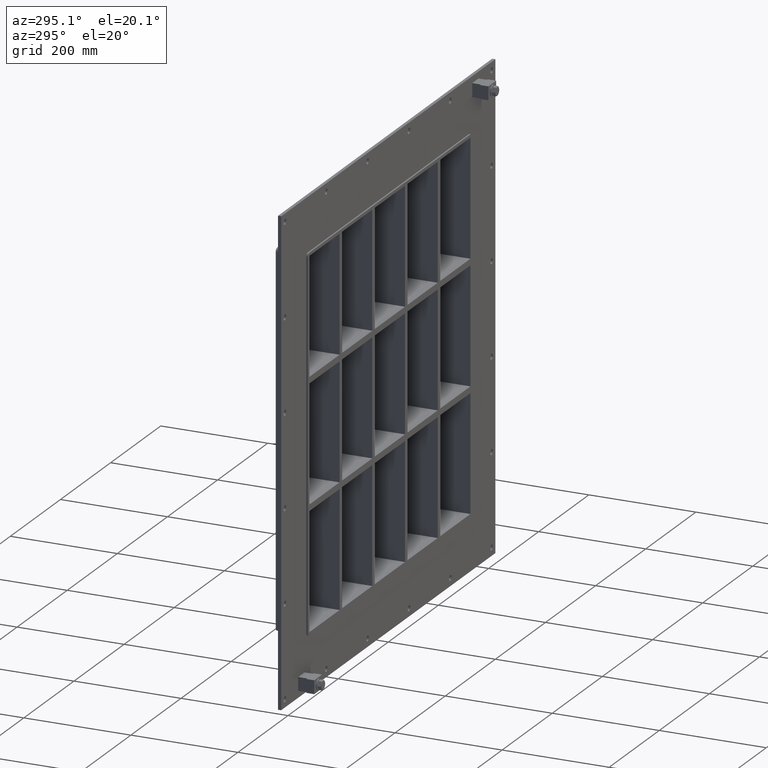
[diagram: clean part render]
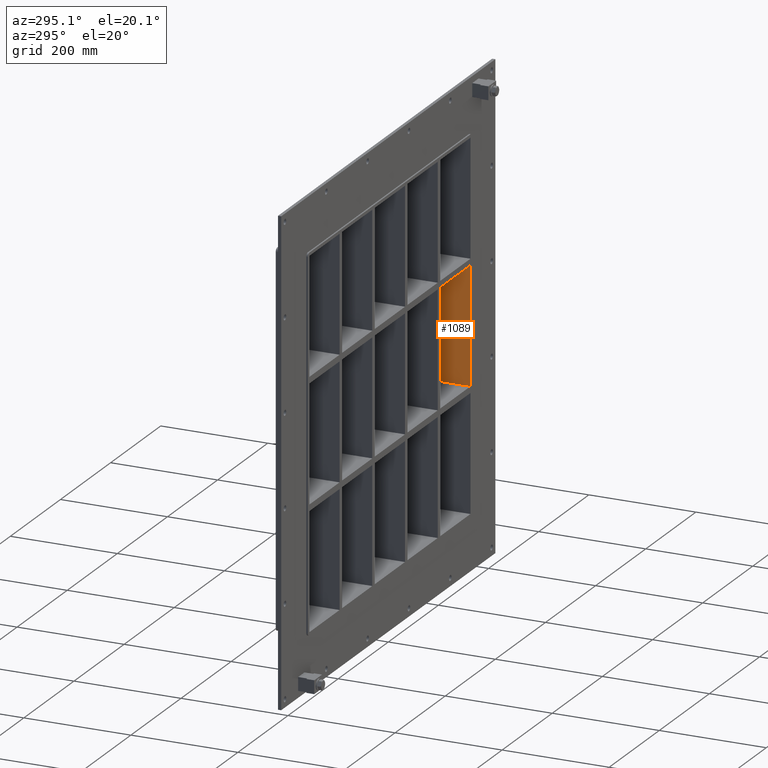
[diagram: same view with one face highlighted and labeled with its STEP entity id]
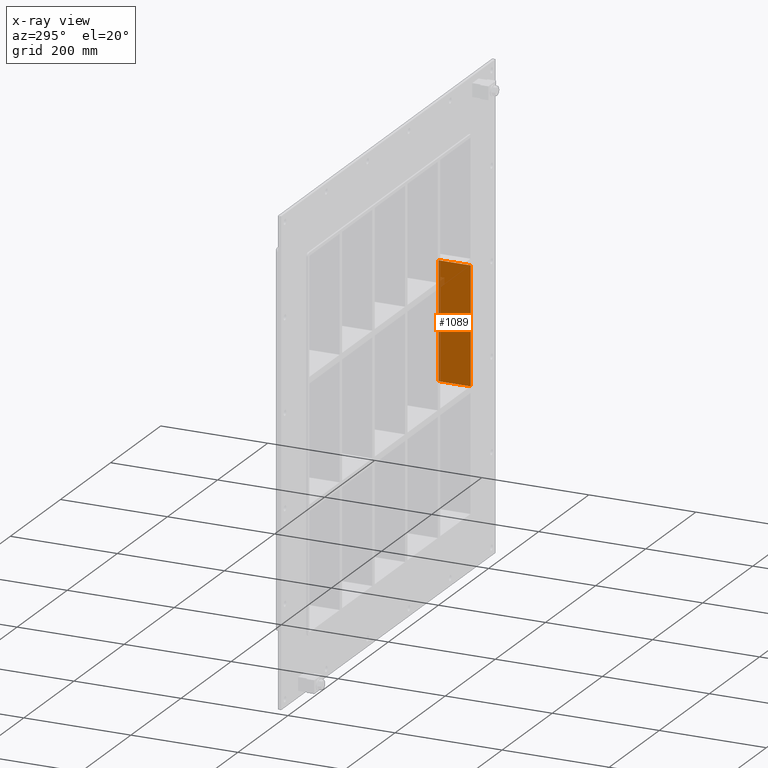
[diagram: x-ray of the same camera — body ghosted, the highlighted face saturated]
A machine part, auxiliary view. The second image highlights one B-rep face of the part: STEP entity #1089.
The next image is the same camera in x-ray: the body ghosted, the highlighted face saturated — about 7% of this face is hidden behind the body in this view.
In plain terms, the highlighted planar face has unit normal (1, 0, 0).
Its self-contained STEP definition (entity closure, byte-faithful):
#763=CARTESIAN_POINT('',(321.25,57.0,108.99999999998911));
#764=VERTEX_POINT('',#763);
#771=CARTESIAN_POINT('',(321.25,-3.0,108.99999999998911));
#772=VERTEX_POINT('',#771);
#773=CARTESIAN_POINT('',(321.25,-3.0,108.99999999998911));
#774=DIRECTION('',(0.0,1.0,0.0));
#775=VECTOR('',#774,60.000000000000007);
#776=LINE('',#773,#775);
#777=EDGE_CURVE('',#772,#764,#776,.T.);
#1059=CARTESIAN_POINT('',(321.25,0.0,339.00000000000006));
#1060=DIRECTION('',(1.0,0.0,0.0));
#1061=DIRECTION('',(0.0,0.0,-1.0));
#1062=AXIS2_PLACEMENT_3D('',#1059,#1060,#1061);
#1063=PLANE('',#1062);
#1064=ORIENTED_EDGE('',*,*,#777,.T.);
#1065=CARTESIAN_POINT('',(321.24999999999915,57.0,-109.00000000000091));
#1066=VERTEX_POINT('',#1065);
#1067=CARTESIAN_POINT('',(321.25,57.0,-109.00000000000088));
#1068=DIRECTION('',(0.0,0.0,1.0));
#1069=VECTOR('',#1068,217.99999999999);
#1070=LINE('',#1067,#1069);
#1071=EDGE_CURVE('',#1066,#764,#1070,.T.);
#1072=ORIENTED_EDGE('',*,*,#1071,.F.);
#1073=CARTESIAN_POINT('',(321.24999999999915,-3.0,-109.00000000000091));
#1074=VERTEX_POINT('',#1073);
#1075=CARTESIAN_POINT('',(321.25,57.000000000000007,-109.00000000000091));
#1076=DIRECTION('',(0.0,-1.0,0.0));
#1077=VECTOR('',#1076,60.000000000000007);
#1078=LINE('',#1075,#1077);
#1079=EDGE_CURVE('',#1066,#1074,#1078,.T.);
#1080=ORIENTED_EDGE('',*,*,#1079,.T.);
#1081=CARTESIAN_POINT('',(321.25,-3.0,108.99999999998911));
#1082=DIRECTION('',(0.0,0.0,-1.0));
#1083=VECTOR('',#1082,217.99999999999);
#1084=LINE('',#1081,#1083);
#1085=EDGE_CURVE('',#772,#1074,#1084,.T.);
#1086=ORIENTED_EDGE('',*,*,#1085,.F.);
#1087=EDGE_LOOP('',(#1064,#1072,#1080,#1086));
#1088=FACE_OUTER_BOUND('',#1087,.T.);
#1089=ADVANCED_FACE('',(#1088),#1063,.F.);